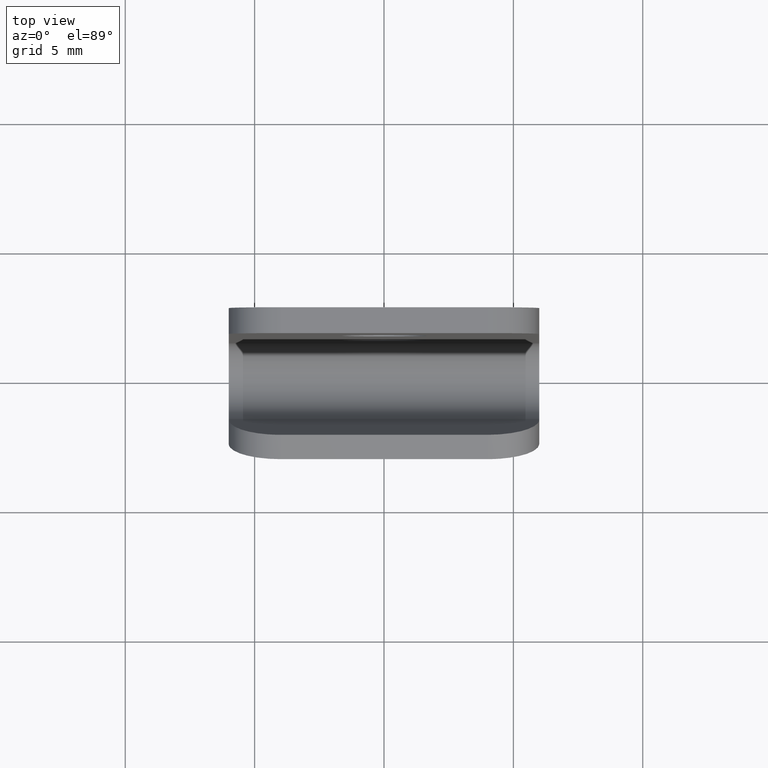
[diagram: clean part render]
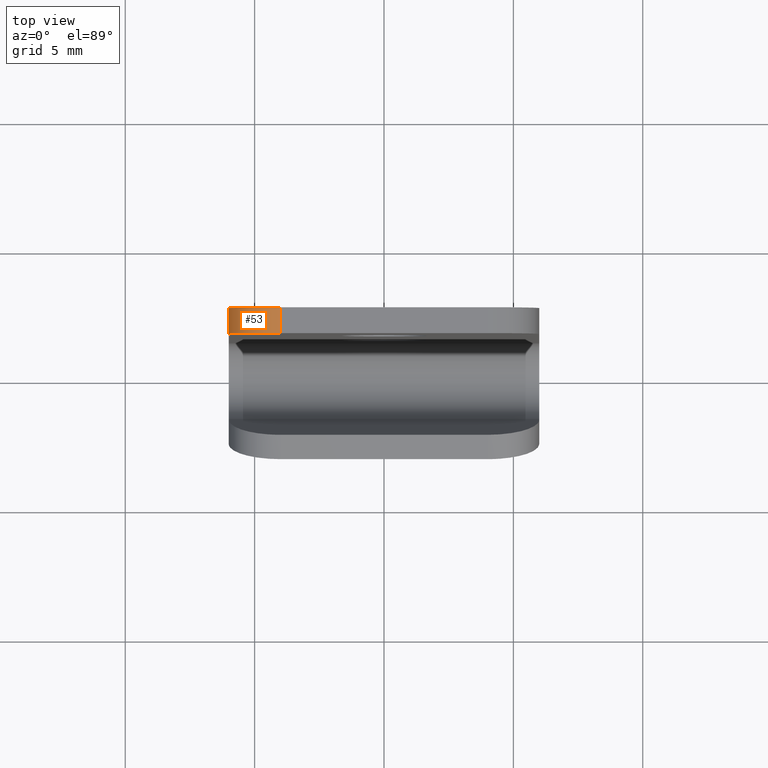
[diagram: same view with one face highlighted and labeled with its STEP entity id]
A machine part, top view. The second image highlights one B-rep face of the part: STEP entity #53.
In plain terms, the highlighted cylindrical surface (partial cylindrical patch) has radius 2 mm, axis along (-0, 1, -0).
Its self-contained STEP definition (entity closure, byte-faithful):
#53=ADVANCED_FACE('',(#193),#192,.T.);
#192=CYLINDRICAL_SURFACE('',#314,2.00000000000E+00);
#193=FACE_OUTER_BOUND('',#315,.T.);
#311=CARTESIAN_POINT('',(-4.00000000000E+00,2.50000000000E+00,2.30000000000E+01));
#312=DIRECTION('',(-0.00000000000E+00,1.00000000000E+00,-0.00000000000E+00));
#313=DIRECTION('',(-0.00000000000E+00,-0.00000000000E+00,1.00000000000E+00));
#314=AXIS2_PLACEMENT_3D('',#311,#312,#313);
#315=EDGE_LOOP('',(#412,#413,#414,#415));
#412=ORIENTED_EDGE('',*,*,#469,.F.);
#413=ORIENTED_EDGE('',*,*,#444,.F.);
#414=ORIENTED_EDGE('',*,*,#460,.F.);
#415=ORIENTED_EDGE('',*,*,#467,.F.);
#444=EDGE_CURVE('',#557,#564,#565,.T.);
#460=EDGE_CURVE('',#663,#557,#670,.T.);
#467=EDGE_CURVE('',#711,#663,#718,.T.);
#469=EDGE_CURVE('',#564,#711,#730,.T.);
#557=VERTEX_POINT('',#845);
#564=VERTEX_POINT('',#849);
#565=LINE('',#850,#851);
#663=VERTEX_POINT('',#906);
#670=CIRCLE('',#913,2.00000000000E+00);
#711=VERTEX_POINT('',#939);
#718=LINE('',#943,#944);
#730=CIRCLE('',#952,2.00000000000E+00);
#845=CARTESIAN_POINT('',(-6.00000000000E+00,1.50000000000E+00,2.30000000000E+01));
#849=CARTESIAN_POINT('',(-6.00000000000E+00,2.50000000000E+00,2.30000000000E+01));
#850=CARTESIAN_POINT('',(-6.00000000000E+00,1.50000000000E+00,2.30000000000E+01));
#851=VECTOR('',#852,1.00000000000E+00);
#852=DIRECTION('',(0.00000000000E+00,1.00000000000E+00,0.00000000000E+00));
#906=CARTESIAN_POINT('',(-4.00000000000E+00,1.50000000000E+00,2.50000000000E+01));
#910=CARTESIAN_POINT('',(-4.00000000000E+00,1.50000000000E+00,2.30000000000E+01));
#911=DIRECTION('',(0.00000000000E+00,-1.00000000000E+00,6.26427921881E-16));
#912=DIRECTION('',(-0.00000000000E+00,-6.26427921881E-16,-1.00000000000E+00));
#913=AXIS2_PLACEMENT_3D('',#910,#911,#912);
#939=CARTESIAN_POINT('',(-4.00000000000E+00,2.50000000000E+00,2.50000000000E+01));
#943=CARTESIAN_POINT('',(-4.00000000000E+00,2.50000000000E+00,2.50000000000E+01));
#944=VECTOR('',#945,1.00000000000E+00);
#945=DIRECTION('',(0.00000000000E+00,-1.00000000000E+00,0.00000000000E+00));
#949=CARTESIAN_POINT('',(-4.00000000000E+00,2.50000000000E+00,2.30000000000E+01));
#950=DIRECTION('',(-0.00000000000E+00,1.00000000000E+00,-6.36065274525E-16));
#951=DIRECTION('',(-0.00000000000E+00,6.36065274525E-16,1.00000000000E+00));
#952=AXIS2_PLACEMENT_3D('',#949,#950,#951);